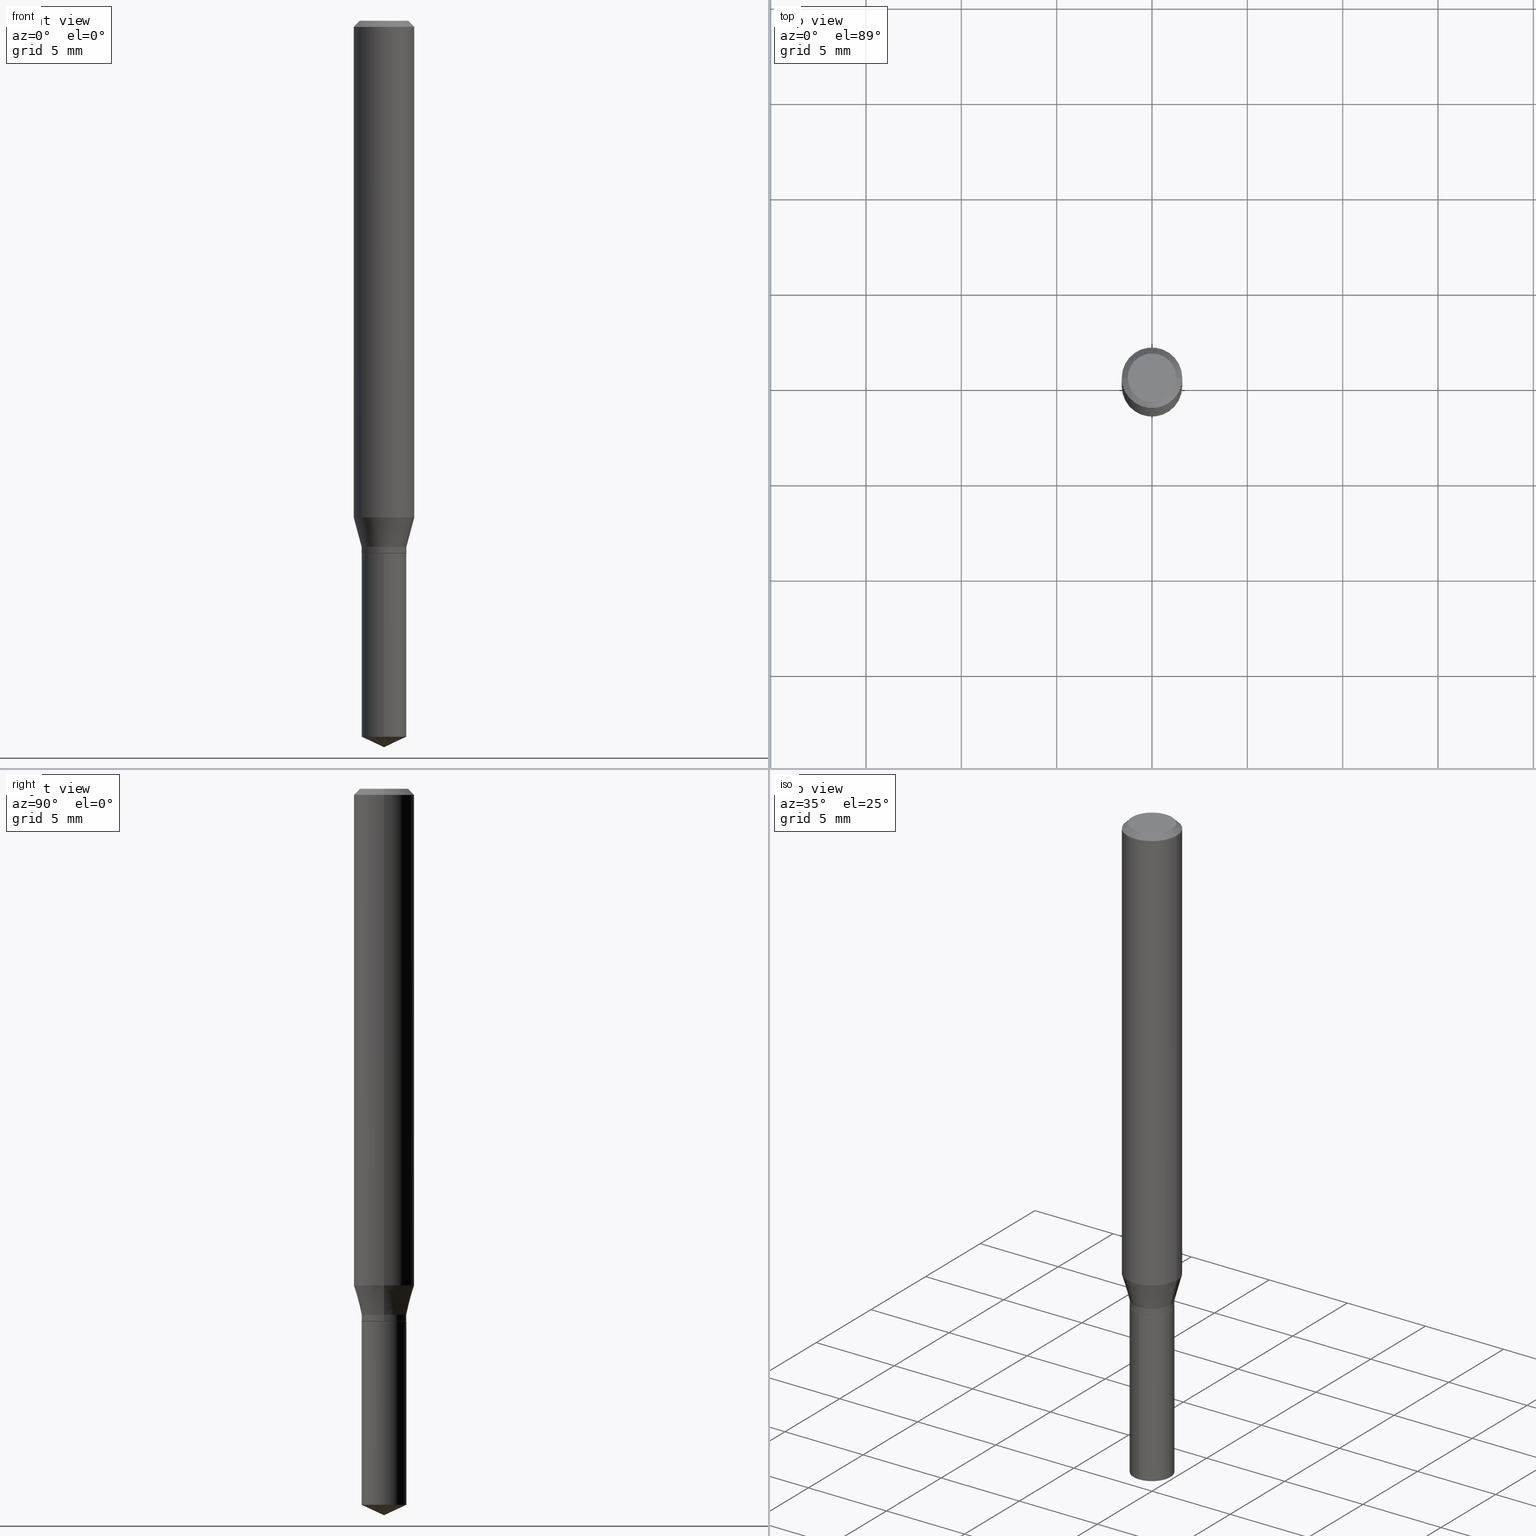
[diagram: canonical four-view strip — front | top / right | iso, engineering-drawing reading convention]
A machine part, canonical four-view strip (front | top / right | iso — engineering-drawing reading convention). The complete STEP part file that produces these views, byte-faithful:
ISO-10303-21;
HEADER;
FILE_DESCRIPTION (( 'STEP AP203' ),
    '1' );
FILE_NAME ('07368.STEP',
    '2024-04-23T20:47:41',
    ( '' ),
    ( '' ),
    'SwSTEP 2.0',
    'SolidWorks 2023',
    '' );
FILE_SCHEMA (( 'CONFIG_CONTROL_DESIGN' ));
ENDSEC;

DATA;
#1 = LINE ( 'NONE', #158, #121 ) ;
#2 = VECTOR ( 'NONE', #217, 39.37007874015748143 ) ;
#3 = LOCAL_TIME ( 16, 47, 41.00000000000000000, #281 ) ;
#4 = ORIENTED_EDGE ( 'NONE', *, *, #170, .T. ) ;
#5 = EDGE_CURVE ( 'NONE', #363, #257, #51, .T. ) ;
#6 = ORIENTED_EDGE ( 'NONE', *, *, #24, .F. ) ;
#7 = ORIENTED_EDGE ( 'NONE', *, *, #372, .T. ) ;
#8 = CARTESIAN_POINT ( 'NONE',  ( 0.04624999999999999944, -4.115059905960530718E-15, -1.086100000000000287 ) ) ;
#9 = DATE_AND_TIME ( #125, #3 ) ;
#10 = VECTOR ( 'NONE', #42, 39.37007874015748854 ) ;
#11 = DIRECTION ( 'NONE',  ( 1.000000000000000000, -6.982962677686264344E-15, 0.000000000000000000 ) ) ;
#12 = ADVANCED_FACE ( 'NONE', ( #380 ), #41, .T. ) ;
#13 = PLANE ( 'NONE',  #279 ) ;
#14 = PERSON_AND_ORGANIZATION ( #228, #101 ) ;
#15 = DIRECTION ( 'NONE',  ( 1.000000000000000000, -6.982962677686266711E-15, 4.876176775795935793E-29 ) ) ;
#16 = DIRECTION ( 'NONE',  ( -2.445468806185136597E-29, 3.491481338843145583E-15, 1.000000000000000000 ) ) ;
#17 = CALENDAR_DATE ( 2024, 23, 4 ) ;
#18 = DIRECTION ( 'NONE',  ( -2.445468806185136597E-29, 3.491481338843145583E-15, 1.000000000000000000 ) ) ;
#19 = CARTESIAN_POINT ( 'NONE',  ( 3.286260152890731533E-16, 0.04624999999999616224, -1.100000000000000089 ) ) ;
#20 = CARTESIAN_POINT ( 'NONE',  ( -0.04624999999999999944, 3.286260152890463320E-16, -2.275007479242894085E-30 ) ) ;
#21 = AXIS2_PLACEMENT_3D ( 'NONE', #402, #113, #256 ) ;
#22 = AXIS2_PLACEMENT_3D ( 'NONE', #173, #108, #322 ) ;
#23 = CARTESIAN_POINT ( 'NONE',  ( -9.260740279983036507E-28, 1.322265303911854087E-13, 37.87007874015748143 ) ) ;
#24 = EDGE_CURVE ( 'NONE', #84, #123, #415, .T. ) ;
#25 = LINE ( 'NONE', #20, #2 ) ;
#26 = EDGE_LOOP ( 'NONE', ( #310, #443, #348, #7 ) ) ;
#27 = CARTESIAN_POINT ( 'NONE',  ( 0.04624999999999999944, -3.229620238429898452E-16, 2.255231758805620374E-30 ) ) ;
#28 = EDGE_LOOP ( 'NONE', ( #333, #120, #218, #455 ) ) ;
#29 = DIRECTION ( 'NONE',  ( -0.7071067811865451302, 2.468850131082231817E-15, -0.7071067811865499042 ) ) ;
#30 = CARTESIAN_POINT ( 'NONE',  ( 0.04624999999999999944, -4.115059905960530718E-15, -1.086100000000000287 ) ) ;
#31 = ADVANCED_FACE ( 'NONE', ( #345 ), #163, .T. ) ;
#32 = CIRCLE ( 'NONE', #313, 0.04624999999999999944 ) ;
#33 =( CONVERSION_BASED_UNIT ( 'INCH', #405 ) LENGTH_UNIT ( ) NAMED_UNIT ( #483 ) );
#34 = CARTESIAN_POINT ( 'NONE',  ( 2.690015686803650369E-29, -3.840629472727460101E-15, -1.100000000000000089 ) ) ;
#35 = APPROVAL ( #275, 'UNSPECIFIED' ) ;
#36 = APPROVAL_DATE_TIME ( #368, #181 ) ;
#37 = CARTESIAN_POINT ( 'NONE',  ( 0.06250000000000000000, -4.724246415962603826E-16, -0.01250000000000008916 ) ) ;
#38 = AXIS2_PLACEMENT_3D ( 'NONE', #100, #214, #362 ) ;
#39 = AXIS2_PLACEMENT_3D ( 'NONE', #71, #75, #298 ) ;
#40 = ORIENTED_EDGE ( 'NONE', *, *, #164, .T. ) ;
#41 = CYLINDRICAL_SURFACE ( 'NONE', #468, 0.04624999999999999944 ) ;
#42 = DIRECTION ( 'NONE',  ( -0.2588190451025212391, 5.211531920934549464E-15, 0.9659258262890679791 ) ) ;
#43 = EDGE_CURVE ( 'NONE', #363, #457, #264, .T. ) ;
#44 = AXIS2_PLACEMENT_3D ( 'NONE', #194, #315, #128 ) ;
#45 = AXIS2_PLACEMENT_3D ( 'NONE', #346, #351, #57 ) ;
#46 = ORIENTED_EDGE ( 'NONE', *, *, #292, .T. ) ;
#47 = VERTEX_POINT ( 'NONE', #49 ) ;
#48 = CARTESIAN_POINT ( 'NONE',  ( 3.056836007731442729E-31, -4.364351673553962300E-17, -0.01250000000000008916 ) ) ;
#49 = CARTESIAN_POINT ( 'NONE',  ( -0.04999999999999999584, 3.709698922520826725E-16, -1.592040838894077649E-18 ) ) ;
#50 = DIRECTION ( 'NONE',  ( -2.445468806185136877E-29, 3.491481338843145188E-15, 1.000000000000000000 ) ) ;
#51 = CIRCLE ( 'NONE', #289, 0.04574999999999999900 ) ;
#52 = CARTESIAN_POINT ( 'NONE',  ( 3.893286209682126177E-47, -5.558580879666067980E-33, -1.592040838891559689E-18 ) ) ;
#53 = AXIS2_PLACEMENT_3D ( 'NONE', #283, #432, #130 ) ;
#54 = LINE ( 'NONE', #465, #184 ) ;
#55 = PERSON_AND_ORGANIZATION_ROLE ( 'classification_officer' ) ;
#56 = CARTESIAN_POINT ( 'NONE',  ( 2.690015686803650369E-29, -3.840629472727460101E-15, -1.100000000000000089 ) ) ;
#57 = DIRECTION ( 'NONE',  ( 1.000000000000000000, -6.982962677686266711E-15, 0.000000000000000000 ) ) ;
#58 = CARTESIAN_POINT ( 'NONE',  ( 2.688792952400557567E-29, -3.838883732058038598E-15, -1.099499999999999922 ) ) ;
#59 = EDGE_LOOP ( 'NONE', ( #328, #40, #197, #230 ) ) ;
#60 = EDGE_CURVE ( 'NONE', #123, #269, #1, .T. ) ;
#61 = APPLICATION_CONTEXT ( 'configuration controlled 3d designs of mechanical parts and assemblies' ) ;
#62 = CARTESIAN_POINT ( 'NONE',  ( 1.946643104841063088E-47, -2.779290439833033990E-33, -7.960204194457798443E-19 ) ) ;
#63 = FACE_OUTER_BOUND ( 'NONE', #378, .T. ) ;
#64 = CONICAL_SURFACE ( 'NONE', #446, 84.42940631927388040, 1.134464013796313786 ) ;
#65 = CONICAL_SURFACE ( 'NONE', #297, 84.42940631927388040, 1.134464013796313786 ) ;
#66 = ORIENTED_EDGE ( 'NONE', *, *, #300, .F. ) ;
#67 = LINE ( 'NONE', #388, #183 ) ;
#68 = EDGE_LOOP ( 'NONE', ( #480, #246, #308 ) ) ;
#69 = ADVANCED_FACE ( 'NONE', ( #320 ), #427, .T. ) ;
#70 = EDGE_LOOP ( 'NONE', ( #182, #419, #395, #254 ) ) ;
#71 = CARTESIAN_POINT ( 'NONE',  ( 2.690015686803650369E-29, -3.840629472727460101E-15, -1.100000000000000089 ) ) ;
#72 = LINE ( 'NONE', #30, #81 ) ;
#73 = AXIS2_PLACEMENT_3D ( 'NONE', #172, #174, #436 ) ;
#74 = CC_DESIGN_SECURITY_CLASSIFICATION ( #396, ( #222 ) ) ;
#75 = DIRECTION ( 'NONE',  ( -2.445399690415121530E-29, 3.491580316559632610E-15, 1.000000000000000000 ) ) ;
#76 = PERSON_AND_ORGANIZATION ( #228, #101 ) ;
#77 = LINE ( 'NONE', #336, #110 ) ;
#78 = EDGE_CURVE ( 'NONE', #147, #47, #146, .T. ) ;
#79 = DIRECTION ( 'NONE',  ( 0.7071067811865451302, -7.319954787623248157E-15, -0.7071067811865499042 ) ) ;
#80 = ORIENTED_EDGE ( 'NONE', *, *, #349, .F. ) ;
#81 = VECTOR ( 'NONE', #221, 39.37007874015748854 ) ;
#82 = LOCAL_TIME ( 16, 47, 41.00000000000000000, #379 ) ;
#83 = EDGE_LOOP ( 'NONE', ( #116, #107, #339, #124 ) ) ;
#84 = VERTEX_POINT ( 'NONE', #245 ) ;
#85 = EDGE_CURVE ( 'NONE', #340, #126, #343, .T. ) ;
#86 = ORIENTED_EDGE ( 'NONE', *, *, #60, .T. ) ;
#87 = AXIS2_PLACEMENT_3D ( 'NONE', #433, #394, #132 ) ;
#88 = CIRCLE ( 'NONE', #87, 0.04999999999999999584 ) ;
#89 = APPLICATION_CONTEXT ( 'configuration controlled 3d designs of mechanical parts and assemblies' ) ;
#90 = APPROVAL_PERSON_ORGANIZATION ( #364, #190, #476 ) ;
#91 = ORIENTED_EDGE ( 'NONE', *, *, #112, .F. ) ;
#92 = PERSON_AND_ORGANIZATION_ROLE ( 'design_supplier' ) ;
#93 = ORIENTED_EDGE ( 'NONE', *, *, #198, .T. ) ;
#94 = CC_DESIGN_DATE_AND_TIME_ASSIGNMENT ( #486, #449, ( #263 ) ) ;
#95 = DIRECTION ( 'NONE',  ( -2.445399690415121810E-29, 3.491580316559632610E-15, 1.000000000000000000 ) ) ;
#96 = SECURITY_CLASSIFICATION_LEVEL ( 'unclassified' ) ;
#97 = DIRECTION ( 'NONE',  ( -2.445468806185136597E-29, 3.491481338843145583E-15, 1.000000000000000000 ) ) ;
#98 = DIRECTION ( 'NONE',  ( -2.445399690415121530E-29, 3.491580316559632610E-15, 1.000000000000000000 ) ) ;
#99 = AXIS2_PLACEMENT_3D ( 'NONE', #327, #134, #109 ) ;
#100 = CARTESIAN_POINT ( 'NONE',  ( 3.056836007731442729E-31, -4.364351673553962300E-17, -0.01250000000000008916 ) ) ;
#101 = ORGANIZATION ( 'UNSPECIFIED', 'UNSPECIFIED', '' ) ;
#102 = DIRECTION ( 'NONE',  ( 1.000000000000000000, -6.982962677686265133E-15, 0.000000000000000000 ) ) ;
#103 = CARTESIAN_POINT ( 'NONE',  ( 2.690015686803650369E-29, -3.840629472727460101E-15, -1.100000000000000089 ) ) ;
#104 = EDGE_CURVE ( 'NONE', #403, #84, #452, .T. ) ;
#105 = CARTESIAN_POINT ( 'NONE',  ( 0.06250000000000012490, -4.016789281031512616E-15, -1.025454174377005589 ) ) ;
#106 = FACE_OUTER_BOUND ( 'NONE', #68, .T. ) ;
#107 = ORIENTED_EDGE ( 'NONE', *, *, #412, .T. ) ;
#108 = DIRECTION ( 'NONE',  ( -2.445468806185136597E-29, 3.491481338843145583E-15, 1.000000000000000000 ) ) ;
#109 = DIRECTION ( 'NONE',  ( 1.000000000000000000, -6.982962677686265133E-15, 0.000000000000000000 ) ) ;
#110 = VECTOR ( 'NONE', #371, 39.37007874015748143 ) ;
#111 = ORIENTED_EDGE ( 'NONE', *, *, #300, .T. ) ;
#112 = EDGE_CURVE ( 'NONE', #439, #193, #67, .T. ) ;
#113 = DIRECTION ( 'NONE',  ( 2.445399690415121250E-29, -3.491580316559632610E-15, -1.000000000000000000 ) ) ;
#114 = ORIENTED_EDGE ( 'NONE', *, *, #356, .F. ) ;
#115 = MECHANICAL_CONTEXT ( 'NONE', #89, 'mechanical' ) ;
#116 = ORIENTED_EDGE ( 'NONE', *, *, #440, .T. ) ;
#117 = CONICAL_SURFACE ( 'NONE', #38, 0.06250000000000000000, 0.7853981633974449483 ) ;
#118 = APPROVAL_STATUS ( 'not_yet_approved' ) ;
#119 = CARTESIAN_POINT ( 'NONE',  ( 3.056836007731442729E-31, -4.364351673553962300E-17, -0.01250000000000008916 ) ) ;
#120 = ORIENTED_EDGE ( 'NONE', *, *, #458, .T. ) ;
#121 = VECTOR ( 'NONE', #304, 39.37007874015748143 ) ;
#122 = EDGE_CURVE ( 'NONE', #123, #454, #240, .T. ) ;
#123 = VERTEX_POINT ( 'NONE', #207 ) ;
#124 = ORIENTED_EDGE ( 'NONE', *, *, #307, .F. ) ;
#125 = CALENDAR_DATE ( 2024, 23, 4 ) ;
#126 = VERTEX_POINT ( 'NONE', #169 ) ;
#127 = AXIS2_PLACEMENT_3D ( 'NONE', #34, #223, #477 ) ;
#128 = DIRECTION ( 'NONE',  ( -6.982962677686265922E-15, -1.000000000000000000, 2.953349182339743999E-15 ) ) ;
#129 = CC_DESIGN_PERSON_AND_ORGANIZATION_ASSIGNMENT ( #485, #445, ( #481 ) ) ;
#130 = DIRECTION ( 'NONE',  ( -6.982962677686265922E-15, -1.000000000000000000, 5.906698364679487997E-15 ) ) ;
#131 = PERSON_AND_ORGANIZATION ( #228, #101 ) ;
#132 = DIRECTION ( 'NONE',  ( 1.000000000000000000, -6.982962677686265922E-15, 4.875957971899673662E-29 ) ) ;
#133 = FACE_OUTER_BOUND ( 'NONE', #220, .T. ) ;
#134 = DIRECTION ( 'NONE',  ( -2.445468806185136597E-29, 3.491481338843145583E-15, 1.000000000000000000 ) ) ;
#135 = CYLINDRICAL_SURFACE ( 'NONE', #241, 0.06250000000000006939 ) ;
#136 = ADVANCED_FACE ( 'NONE', ( #431 ), #305, .T. ) ;
#137 = VECTOR ( 'NONE', #282, 39.37007874015748143 ) ;
#138 = CARTESIAN_POINT ( 'NONE',  ( 2.656023670397677438E-29, -3.792097882117540725E-15, -1.086100000000000287 ) ) ;
#139 = CARTESIAN_POINT ( 'NONE',  ( 3.668099535622682715E-29, -5.237370474839449507E-15, -1.500000000000000222 ) ) ;
#140 = DIRECTION ( 'NONE',  ( -6.328713451373368590E-15, -0.9063077870366483824, 0.4226182617407029940 ) ) ;
#141 = ORIENTED_EDGE ( 'NONE', *, *, #43, .T. ) ;
#142 = DIRECTION ( 'NONE',  ( 6.439704144417024042E-15, 0.9063077870366512689, 0.4226182617406966657 ) ) ;
#143 = DIRECTION ( 'NONE',  ( 1.000000000000000000, -6.982962677686264344E-15, 0.000000000000000000 ) ) ;
#144 = EDGE_LOOP ( 'NONE', ( #91, #288, #344 ) ) ;
#145 = COORDINATED_UNIVERSAL_TIME_OFFSET ( 5, 0, .BEHIND. ) ;
#146 = CIRCLE ( 'NONE', #321, 0.04999999999999999584 ) ;
#147 = VERTEX_POINT ( 'NONE', #355 ) ;
#148 = ADVANCED_FACE ( 'NONE', ( #278 ), #251, .T. ) ;
#149 = APPLICATION_PROTOCOL_DEFINITION ( 'international standard', 'config_control_design', 1994, #61 ) ;
#150 = CARTESIAN_POINT ( 'NONE',  ( -0.04574999999999999900, -3.512906943943103368E-15, -1.100000000000000089 ) ) ;
#151 = VECTOR ( 'NONE', #79, 39.37007874015748143 ) ;
#152 = AXIS2_PLACEMENT_3D ( 'NONE', #119, #417, #244 ) ;
#153 = CC_DESIGN_APPROVAL ( #35, ( #396 ) ) ;
#154 = CALENDAR_DATE ( 2024, 23, 4 ) ;
#155 = CC_DESIGN_DATE_AND_TIME_ASSIGNMENT ( #466, #309, ( #396 ) ) ;
#156 = ORIENTED_EDGE ( 'NONE', *, *, #425, .F. ) ;
#157 = EDGE_CURVE ( 'NONE', #257, #363, #369, .T. ) ;
#158 = CARTESIAN_POINT ( 'NONE',  ( -0.06250000000000006939, 4.440892098500631092E-16, -3.074334431409319267E-30 ) ) ;
#159 = AXIS2_PLACEMENT_3D ( 'NONE', #248, #18, #143 ) ;
#160 = CONICAL_SURFACE ( 'NONE', #152, 0.06250000000000000000, 0.7853981633974449483 ) ;
#161 = ORIENTED_EDGE ( 'NONE', *, *, #43, .F. ) ;
#162 = ORIENTED_EDGE ( 'NONE', *, *, #104, .T. ) ;
#163 = CYLINDRICAL_SURFACE ( 'NONE', #44, 0.04624999999999999944 ) ;
#164 = EDGE_CURVE ( 'NONE', #175, #84, #25, .T. ) ;
#165 = AXIS2_PLACEMENT_3D ( 'NONE', #186, #410, #294 ) ;
#166 = LINE ( 'NONE', #274, #469 ) ;
#167 = ORIENTED_EDGE ( 'NONE', *, *, #78, .F. ) ;
#168 = DIRECTION ( 'NONE',  ( -1.000000000000000000, 6.982962677686265922E-15, -4.876176775795935793E-29 ) ) ;
#169 = CARTESIAN_POINT ( 'NONE',  ( -3.229620238429629253E-16, -0.04625000000000384359, -1.099999999999999867 ) ) ;
#170 = EDGE_CURVE ( 'NONE', #454, #123, #350, .T. ) ;
#171 = CARTESIAN_POINT ( 'NONE',  ( 3.286260152890825210E-16, 0.04624999999999616224, -1.100000000000000089 ) ) ;
#172 = CARTESIAN_POINT ( 'NONE',  ( 2.507716195611300644E-29, -3.580354113676120158E-15, -1.025454174377005589 ) ) ;
#173 = CARTESIAN_POINT ( 'NONE',  ( 2.688792952400557567E-29, -3.838883732058038598E-15, -1.099499999999999922 ) ) ;
#174 = DIRECTION ( 'NONE',  ( -2.445468806185136597E-29, 3.491481338843145583E-15, 1.000000000000000000 ) ) ;
#175 = VERTEX_POINT ( 'NONE', #284 ) ;
#176 = DIRECTION ( 'NONE',  ( -2.445399690415121530E-29, 3.491580316559632610E-15, 1.000000000000000000 ) ) ;
#177 = CARTESIAN_POINT ( 'NONE',  ( 2.507716195611300644E-29, -3.580354113676120158E-15, -1.025454174377005589 ) ) ;
#178 = ORIENTED_EDGE ( 'NONE', *, *, #5, .T. ) ;
#179 =( NAMED_UNIT ( * ) PLANE_ANGLE_UNIT ( ) SI_UNIT ( $, .RADIAN. ) );
#180 = LINE ( 'NONE', #27, #137 ) ;
#181 = APPROVAL ( #441, 'UNSPECIFIED' ) ;
#182 = ORIENTED_EDGE ( 'NONE', *, *, #60, .F. ) ;
#183 = VECTOR ( 'NONE', #140, 39.37007874015748143 ) ;
#184 = VECTOR ( 'NONE', #50, 39.37007874015748143 ) ;
#185 = EDGE_LOOP ( 'NONE', ( #6, #475, #111, #359 ) ) ;
#186 = CARTESIAN_POINT ( 'NONE',  ( 0.000000000000000000, 0.000000000000000000, 0.000000000000000000 ) ) ;
#187 = ADVANCED_FACE ( 'NONE', ( #106 ), #64, .T. ) ;
#188 = CARTESIAN_POINT ( 'NONE',  ( -0.06250000000000000000, -1.367909605355765863E-15, -0.01250000000000008916 ) ) ;
#189 = PERSON_AND_ORGANIZATION ( #228, #101 ) ;
#190 = APPROVAL ( #118, 'UNSPECIFIED' ) ;
#191 = AXIS2_PLACEMENT_3D ( 'NONE', #391, #473, #210 ) ;
#192 = CC_DESIGN_APPROVAL ( #181, ( #263 ) ) ;
#193 = VERTEX_POINT ( 'NONE', #253 ) ;
#194 = CARTESIAN_POINT ( 'NONE',  ( 2.690015686803650369E-29, -3.840629472727460101E-15, -1.100000000000000089 ) ) ;
#195 = ORIENTED_EDGE ( 'NONE', *, *, #157, .T. ) ;
#196 = AXIS2_PLACEMENT_3D ( 'NONE', #58, #358, #324 ) ;
#197 = ORIENTED_EDGE ( 'NONE', *, *, #104, .F. ) ;
#198 = EDGE_CURVE ( 'NONE', #457, #403, #180, .T. ) ;
#199 = DIRECTION ( 'NONE',  ( 1.000000000000000000, -6.982962677686266711E-15, 4.876176775795935793E-29 ) ) ;
#200 = DIRECTION ( 'NONE',  ( -2.445468806185136597E-29, 3.491481338843145583E-15, 1.000000000000000000 ) ) ;
#201 = PERSON_AND_ORGANIZATION ( #228, #101 ) ;
#202 = CARTESIAN_POINT ( 'NONE',  ( 2.690015686803650369E-29, -3.840629472727460101E-15, -1.100000000000000089 ) ) ;
#203 = AXIS2_PLACEMENT_3D ( 'NONE', #48, #200, #314 ) ;
#204 = DIRECTION ( 'NONE',  ( -0.7071067811865232589, 7.493145998870265808E-15, 0.7071067811865715536 ) ) ;
#205 = CARTESIAN_POINT ( 'NONE',  ( -9.260740279983036507E-28, 1.322265303911854087E-13, 37.87007874015748143 ) ) ;
#206 = CARTESIAN_POINT ( 'NONE',  ( 0.000000000000000000, 0.000000000000000000, 0.000000000000000000 ) ) ;
#207 = CARTESIAN_POINT ( 'NONE',  ( -0.06250000000000012490, -3.136264903826056358E-15, -1.025454174377005589 ) ) ;
#208 = CC_DESIGN_PERSON_AND_ORGANIZATION_ASSIGNMENT ( #347, #55, ( #396 ) ) ;
#209 = DIRECTION ( 'NONE',  ( -2.445468806185136597E-29, 3.491481338843145583E-15, 1.000000000000000000 ) ) ;
#210 = DIRECTION ( 'NONE',  ( 1.000000000000000000, -6.982962677686264344E-15, 0.000000000000000000 ) ) ;
#211 = EDGE_LOOP ( 'NONE', ( #178, #414, #156, #161 ) ) ;
#212 = CARTESIAN_POINT ( 'NONE',  ( 3.615436290086016427E-29, -5.161959632220094435E-15, -1.478433270810331379 ) ) ;
#213 = CIRCLE ( 'NONE', #203, 0.06250000000000000000 ) ;
#214 = DIRECTION ( 'NONE',  ( 2.445468806185136597E-29, -3.491481338843145583E-15, -1.000000000000000000 ) ) ;
#215 = ORIENTED_EDGE ( 'NONE', *, *, #474, .F. ) ;
#216 = EDGE_CURVE ( 'NONE', #175, #457, #406, .T. ) ;
#217 = DIRECTION ( 'NONE',  ( -2.445468806185136877E-29, 3.491481338843145188E-15, 1.000000000000000000 ) ) ;
#218 = ORIENTED_EDGE ( 'NONE', *, *, #307, .T. ) ;
#219 =( LENGTH_UNIT ( ) NAMED_UNIT ( * ) SI_UNIT ( $, .METRE. ) );
#220 = EDGE_LOOP ( 'NONE', ( #4, #86, #215, #80 ) ) ;
#221 = DIRECTION ( 'NONE',  ( 0.2588190451025212391, 1.565188264969622362E-15, 0.9659258262890679791 ) ) ;
#222 = PRODUCT_DEFINITION_FORMATION_WITH_SPECIFIED_SOURCE ( 'ANY', '', #481, .NOT_KNOWN. ) ;
#223 = DIRECTION ( 'NONE',  ( -2.445399690415121530E-29, 3.491580316559632610E-15, 1.000000000000000000 ) ) ;
#224 = ORIENTED_EDGE ( 'NONE', *, *, #237, .T. ) ;
#225 = AXIS2_PLACEMENT_3D ( 'NONE', #177, #385, #287 ) ;
#226 = ADVANCED_FACE ( 'NONE', ( #63 ), #461, .T. ) ;
#227 = CARTESIAN_POINT ( 'NONE',  ( 0.000000000000000000, 0.000000000000000000, 0.000000000000000000 ) ) ;
#228 = PERSON ( 'UNSPECIFIED', 'UNSPECIFIED', 'UNSPECIFIED', ('UNSPECIFIED'), ('UNSPECIFIED'), ('UNSPECIFIED') ) ;
#229 = DIRECTION ( 'NONE',  ( -2.445468806185136597E-29, 3.491481338843145583E-15, 1.000000000000000000 ) ) ;
#230 = ORIENTED_EDGE ( 'NONE', *, *, #198, .F. ) ;
#231 = AXIS2_PLACEMENT_3D ( 'NONE', #138, #398, #464 ) ;
#232 = CIRCLE ( 'NONE', #22, 0.04624999999999999944 ) ;
#233 = PERSON_AND_ORGANIZATION_ROLE ( 'creator' ) ;
#234 = ORIENTED_EDGE ( 'NONE', *, *, #316, .T. ) ;
#235 = ORIENTED_EDGE ( 'NONE', *, *, #337, .F. ) ;
#236 = CARTESIAN_POINT ( 'NONE',  ( 2.656023670397677438E-29, -3.792097882117540725E-15, -1.086100000000000287 ) ) ;
#237 = EDGE_CURVE ( 'NONE', #47, #147, #88, .T. ) ;
#238 = APPROVAL_DATE_TIME ( #9, #35 ) ;
#239 = DIRECTION ( 'NONE',  ( -2.445468806185136597E-29, 3.491481338843145583E-15, 1.000000000000000000 ) ) ;
#240 = CIRCLE ( 'NONE', #225, 0.06250000000000012490 ) ;
#241 = AXIS2_PLACEMENT_3D ( 'NONE', #280, #357, #429 ) ;
#242 = CARTESIAN_POINT ( 'NONE',  ( 0.04574999999999999900, -4.160100015231607087E-15, -1.100000000000000089 ) ) ;
#243 = DIRECTION ( 'NONE',  ( -2.445399690415121530E-29, 3.491580316559632610E-15, 1.000000000000000000 ) ) ;
#244 = DIRECTION ( 'NONE',  ( -1.000000000000000000, 6.982962677686266711E-15, 0.000000000000000000 ) ) ;
#245 = CARTESIAN_POINT ( 'NONE',  ( -0.04624999999999999944, -3.486864791798743231E-15, -1.086100000000000287 ) ) ;
#246 = ORIENTED_EDGE ( 'NONE', *, *, #112, .T. ) ;
#247 = CARTESIAN_POINT ( 'NONE',  ( 0.04624999999999999944, -4.161845755901027802E-15, -1.099499999999999922 ) ) ;
#248 = CARTESIAN_POINT ( 'NONE',  ( 2.690015686803650369E-29, -3.840629472727460101E-15, -1.100000000000000089 ) ) ;
#249 = ADVANCED_FACE ( 'NONE', ( #318 ), #117, .T. ) ;
#250 = LINE ( 'NONE', #286, #306 ) ;
#251 = CONICAL_SURFACE ( 'NONE', #159, 0.04574999999999999900, 0.7853981633974141952 ) ;
#252 = CONICAL_SURFACE ( 'NONE', #407, 0.04624999999999999944, 0.2617993877991499629 ) ;
#253 = CARTESIAN_POINT ( 'NONE',  ( -3.229620238429537055E-16, -0.04625000000000517586, -1.478433270810331157 ) ) ;
#254 = ORIENTED_EDGE ( 'NONE', *, *, #372, .F. ) ;
#255 = APPROVAL_ROLE ( '' ) ;
#256 = DIRECTION ( 'NONE',  ( 6.982962677686265922E-15, 1.000000000000000000, -3.491580316559632610E-15 ) ) ;
#257 = VERTEX_POINT ( 'NONE', #150 ) ;
#258 = CALENDAR_DATE ( 2024, 23, 4 ) ;
#259 = FACE_OUTER_BOUND ( 'NONE', #329, .T. ) ;
#260 = ADVANCED_FACE ( 'NONE', ( #408 ), #295, .F. ) ;
#261 =( GEOMETRIC_REPRESENTATION_CONTEXT ( 3 ) GLOBAL_UNCERTAINTY_ASSIGNED_CONTEXT ( ( #301 ) ) GLOBAL_UNIT_ASSIGNED_CONTEXT ( ( #33, #179, #479 ) ) REPRESENTATION_CONTEXT ( 'NONE', 'WORKASPACE' ) );
#262 = CARTESIAN_POINT ( 'NONE',  ( 2.690015686803650369E-29, -3.840629472727460101E-15, -1.100000000000000089 ) ) ;
#263 = PRODUCT_DEFINITION ( 'UNKNOWN', '', #222, #484 ) ;
#264 = LINE ( 'NONE', #273, #271 ) ;
#265 = CLOSED_SHELL ( 'NONE', ( #69, #323, #409, #136, #12, #226, #389, #381, #249, #376, #285, #148 ) ) ;
#266 = APPROVAL_PERSON_ORGANIZATION ( #14, #35, #456 ) ;
#267 = DIRECTION ( 'NONE',  ( -2.445468806185136597E-29, 3.491481338843145583E-15, 1.000000000000000000 ) ) ;
#268 = ORIENTED_EDGE ( 'NONE', *, *, #78, .T. ) ;
#269 = VERTEX_POINT ( 'NONE', #188 ) ;
#270 = CC_DESIGN_PERSON_AND_ORGANIZATION_ASSIGNMENT ( #131, #92, ( #222 ) ) ;
#271 = VECTOR ( 'NONE', #382, 39.37007874015748854 ) ;
#272 = CIRCLE ( 'NONE', #45, 0.06250000000000000000 ) ;
#273 = CARTESIAN_POINT ( 'NONE',  ( 0.04574999999999999900, -4.160100015231607087E-15, -1.100000000000000089 ) ) ;
#274 = CARTESIAN_POINT ( 'NONE',  ( -0.06250000000000000000, 3.927916506198520587E-16, -0.01250000000000008916 ) ) ;
#275 = APPROVAL_STATUS ( 'not_yet_approved' ) ;
#276 = DIRECTION ( 'NONE',  ( 1.000000000000000000, -6.982962677686265922E-15, 4.875957971899673662E-29 ) ) ;
#277 = DIRECTION ( 'NONE',  ( -6.982962677686267499E-15, -1.000000000000000000, 3.520397390770472803E-15 ) ) ;
#278 = FACE_OUTER_BOUND ( 'NONE', #291, .T. ) ;
#279 = AXIS2_PLACEMENT_3D ( 'NONE', #62, #319, #168 ) ;
#280 = CARTESIAN_POINT ( 'NONE',  ( 0.000000000000000000, 0.000000000000000000, 0.000000000000000000 ) ) ;
#281 = COORDINATED_UNIVERSAL_TIME_OFFSET ( 5, 0, .BEHIND. ) ;
#282 = DIRECTION ( 'NONE',  ( -2.445468806185136877E-29, 3.491481338843145188E-15, 1.000000000000000000 ) ) ;
#283 = CARTESIAN_POINT ( 'NONE',  ( 3.615436290086016427E-29, -5.161959632220094435E-15, -1.478433270810331379 ) ) ;
#284 = CARTESIAN_POINT ( 'NONE',  ( -0.04624999999999999944, -3.486864791798743231E-15, -1.099499999999999922 ) ) ;
#285 = ADVANCED_FACE ( 'NONE', ( #259 ), #299, .F. ) ;
#286 = CARTESIAN_POINT ( 'NONE',  ( 3.668252923656895710E-29, -5.237152723863177100E-15, -1.500000000000000222 ) ) ;
#287 = DIRECTION ( 'NONE',  ( 1.000000000000000000, -6.982962677686264344E-15, 0.000000000000000000 ) ) ;
#288 = ORIENTED_EDGE ( 'NONE', *, *, #462, .T. ) ;
#289 = AXIS2_PLACEMENT_3D ( 'NONE', #202, #229, #11 ) ;
#290 = LOCAL_TIME ( 16, 47, 41.00000000000000000, #145 ) ;
#291 = EDGE_LOOP ( 'NONE', ( #114, #195, #141, #416 ) ) ;
#292 = EDGE_CURVE ( 'NONE', #147, #303, #447, .T. ) ;
#293 = FACE_OUTER_BOUND ( 'NONE', #28, .T. ) ;
#294 = DIRECTION ( 'NONE',  ( 1.000000000000000000, 0.000000000000000000, 0.000000000000000000 ) ) ;
#295 = PLANE ( 'NONE',  #21 ) ;
#296 = DIRECTION ( 'NONE',  ( 1.000000000000000000, -6.982962677686265922E-15, 4.876176775795935793E-29 ) ) ;
#297 = AXIS2_PLACEMENT_3D ( 'NONE', #23, #98, #277 ) ;
#298 = DIRECTION ( 'NONE',  ( -6.982962677686265922E-15, -1.000000000000000000, 2.953349182339743999E-15 ) ) ;
#299 = PLANE ( 'NONE',  #312 ) ;
#300 = EDGE_CURVE ( 'NONE', #403, #454, #72, .T. ) ;
#301 = UNCERTAINTY_MEASURE_WITH_UNIT (LENGTH_MEASURE( 1.000000000000000082E-05 ), #33, 'distance_accuracy_value', 'NONE');
#302 = ADVANCED_BREP_SHAPE_REPRESENTATION ( '07368', ( #450, #444, #165 ), #261 ) ;
#303 = VERTEX_POINT ( 'NONE', #411 ) ;
#304 = DIRECTION ( 'NONE',  ( -2.445468806185136877E-29, 3.491481338843145188E-15, 1.000000000000000000 ) ) ;
#305 = CONICAL_SURFACE ( 'NONE', #99, 0.04624999999999999944, 0.2617993877991499629 ) ;
#306 = VECTOR ( 'NONE', #142, 39.37007874015748143 ) ;
#307 = EDGE_CURVE ( 'NONE', #193, #126, #77, .T. ) ;
#308 = ORIENTED_EDGE ( 'NONE', *, *, #458, .F. ) ;
#309 = DATE_TIME_ROLE ( 'classification_date' ) ;
#310 = ORIENTED_EDGE ( 'NONE', *, *, #292, .F. ) ;
#311 = ORIENTED_EDGE ( 'NONE', *, *, #170, .F. ) ;
#312 = AXIS2_PLACEMENT_3D ( 'NONE', #262, #404, #296 ) ;
#313 = AXIS2_PLACEMENT_3D ( 'NONE', #212, #176, #326 ) ;
#314 = DIRECTION ( 'NONE',  ( 1.000000000000000000, -6.982962677686266711E-15, 0.000000000000000000 ) ) ;
#315 = DIRECTION ( 'NONE',  ( -2.445399690415121530E-29, 3.491580316559632610E-15, 1.000000000000000000 ) ) ;
#316 = EDGE_CURVE ( 'NONE', #126, #340, #418, .T. ) ;
#317 = FACE_OUTER_BOUND ( 'NONE', #185, .T. ) ;
#318 = FACE_OUTER_BOUND ( 'NONE', #26, .T. ) ;
#319 = DIRECTION ( 'NONE',  ( 2.438088387897960049E-29, -3.491481338843145188E-15, -1.000000000000000000 ) ) ;
#320 = FACE_OUTER_BOUND ( 'NONE', #211, .T. ) ;
#321 = AXIS2_PLACEMENT_3D ( 'NONE', #52, #239, #276 ) ;
#322 = DIRECTION ( 'NONE',  ( 1.000000000000000000, -6.982962677686265133E-15, 0.000000000000000000 ) ) ;
#323 = ADVANCED_FACE ( 'NONE', ( #488 ), #160, .T. ) ;
#324 = DIRECTION ( 'NONE',  ( 1.000000000000000000, -6.982962677686265133E-15, 0.000000000000000000 ) ) ;
#325 = EDGE_LOOP ( 'NONE', ( #167, #46, #442, #420 ) ) ;
#326 = DIRECTION ( 'NONE',  ( -6.982962677686265922E-15, -1.000000000000000000, 5.906698364679487997E-15 ) ) ;
#327 = CARTESIAN_POINT ( 'NONE',  ( 2.656023670397677438E-29, -3.792097882117540725E-15, -1.086100000000000287 ) ) ;
#328 = ORIENTED_EDGE ( 'NONE', *, *, #425, .T. ) ;
#329 = EDGE_LOOP ( 'NONE', ( #489, #478 ) ) ;
#330 = CYLINDRICAL_SURFACE ( 'NONE', #39, 0.04624999999999999944 ) ;
#331 = CLOSED_SHELL ( 'NONE', ( #31, #401, #187, #490, #260 ) ) ;
#332 = CC_DESIGN_APPROVAL ( #190, ( #222 ) ) ;
#333 = ORIENTED_EDGE ( 'NONE', *, *, #412, .F. ) ;
#334 = PERSON_AND_ORGANIZATION_ROLE ( 'creator' ) ;
#335 = AXIS2_PLACEMENT_3D ( 'NONE', #352, #471, #15 ) ;
#336 = CARTESIAN_POINT ( 'NONE',  ( -3.229620238429629253E-16, -0.04625000000000384359, -1.099999999999999867 ) ) ;
#337 = EDGE_CURVE ( 'NONE', #84, #403, #374, .T. ) ;
#338 = VECTOR ( 'NONE', #204, 39.37007874015748854 ) ;
#339 = ORIENTED_EDGE ( 'NONE', *, *, #316, .F. ) ;
#340 = VERTEX_POINT ( 'NONE', #171 ) ;
#341 = CC_DESIGN_PERSON_AND_ORGANIZATION_ASSIGNMENT ( #189, #334, ( #263 ) ) ;
#342 = EDGE_LOOP ( 'NONE', ( #162, #366, #311, #66 ) ) ;
#343 = CIRCLE ( 'NONE', #413, 0.04624999999999999944 ) ;
#344 = ORIENTED_EDGE ( 'NONE', *, *, #440, .F. ) ;
#345 = FACE_OUTER_BOUND ( 'NONE', #83, .T. ) ;
#346 = CARTESIAN_POINT ( 'NONE',  ( 3.056836007731442729E-31, -4.364351673553962300E-17, -0.01250000000000008916 ) ) ;
#347 = PERSON_AND_ORGANIZATION ( #228, #101 ) ;
#348 = ORIENTED_EDGE ( 'NONE', *, *, #482, .T. ) ;
#349 = EDGE_CURVE ( 'NONE', #454, #303, #54, .T. ) ;
#350 = CIRCLE ( 'NONE', #73, 0.06250000000000012490 ) ;
#351 = DIRECTION ( 'NONE',  ( -2.445468806185136597E-29, 3.491481338843145583E-15, 1.000000000000000000 ) ) ;
#352 = CARTESIAN_POINT ( 'NONE',  ( 0.000000000000000000, 0.000000000000000000, 0.000000000000000000 ) ) ;
#353 = CARTESIAN_POINT ( 'NONE',  ( -0.04574999999999999900, -3.515556171117214569E-15, -1.100000000000000089 ) ) ;
#354 = CALENDAR_DATE ( 2024, 23, 4 ) ;
#355 = CARTESIAN_POINT ( 'NONE',  ( 0.04999999999999999584, -4.077247707424184705E-16, -1.592040838888913461E-18 ) ) ;
#356 = EDGE_CURVE ( 'NONE', #257, #175, #383, .T. ) ;
#357 = DIRECTION ( 'NONE',  ( -2.445468806185136597E-29, 3.491481338843145583E-15, 1.000000000000000000 ) ) ;
#358 = DIRECTION ( 'NONE',  ( -2.445468806185136597E-29, 3.491481338843145583E-15, 1.000000000000000000 ) ) ;
#359 = ORIENTED_EDGE ( 'NONE', *, *, #122, .F. ) ;
#360 = LOCAL_TIME ( 16, 47, 41.00000000000000000, #373 ) ;
#361 = CARTESIAN_POINT ( 'NONE',  ( 2.656023670397677438E-29, -3.792097882117540725E-15, -1.086100000000000287 ) ) ;
#362 = DIRECTION ( 'NONE',  ( -1.000000000000000000, 6.982962677686266711E-15, 0.000000000000000000 ) ) ;
#363 = VERTEX_POINT ( 'NONE', #242 ) ;
#364 = PERSON_AND_ORGANIZATION ( #228, #101 ) ;
#365 = DIRECTION ( 'NONE',  ( 1.000000000000000000, -6.982962677686264344E-15, 0.000000000000000000 ) ) ;
#366 = ORIENTED_EDGE ( 'NONE', *, *, #24, .T. ) ;
#367 = CC_DESIGN_PERSON_AND_ORGANIZATION_ASSIGNMENT ( #201, #233, ( #222 ) ) ;
#368 = DATE_AND_TIME ( #154, #360 ) ;
#369 = CIRCLE ( 'NONE', #191, 0.04574999999999999900 ) ;
#370 = APPROVAL_PERSON_ORGANIZATION ( #76, #181, #255 ) ;
#371 = DIRECTION ( 'NONE',  ( -2.445399690415121810E-29, 3.491580316559632610E-15, 1.000000000000000000 ) ) ;
#372 = EDGE_CURVE ( 'NONE', #269, #303, #272, .T. ) ;
#373 = COORDINATED_UNIVERSAL_TIME_OFFSET ( 5, 0, .BEHIND. ) ;
#374 = CIRCLE ( 'NONE', #428, 0.04624999999999999944 ) ;
#375 = ORIENTED_EDGE ( 'NONE', *, *, #85, .T. ) ;
#376 = ADVANCED_FACE ( 'NONE', ( #472 ), #13, .F. ) ;
#377 = CARTESIAN_POINT ( 'NONE',  ( -0.04624999999999999944, -3.463471866828494688E-15, -1.086100000000000287 ) ) ;
#378 = EDGE_LOOP ( 'NONE', ( #399, #392, #93, #235 ) ) ;
#379 = COORDINATED_UNIVERSAL_TIME_OFFSET ( 5, 0, .BEHIND. ) ;
#380 = FACE_OUTER_BOUND ( 'NONE', #59, .T. ) ;
#381 = ADVANCED_FACE ( 'NONE', ( #393 ), #463, .T. ) ;
#382 = DIRECTION ( 'NONE',  ( 0.7071067811865232589, -2.468850131082003836E-15, 0.7071067811865715536 ) ) ;
#383 = LINE ( 'NONE', #353, #338 ) ;
#384 = SHAPE_DEFINITION_REPRESENTATION ( #437, #302 ) ;
#385 = DIRECTION ( 'NONE',  ( -2.445468806185136597E-29, 3.491481338843145583E-15, 1.000000000000000000 ) ) ;
#386 = VECTOR ( 'NONE', #95, 39.37007874015748143 ) ;
#387 = FACE_OUTER_BOUND ( 'NONE', #144, .T. ) ;
#388 = CARTESIAN_POINT ( 'NONE',  ( 3.668099535622682155E-29, -5.237370474839448718E-15, -1.500000000000000222 ) ) ;
#389 = ADVANCED_FACE ( 'NONE', ( #317 ), #252, .T. ) ;
#390 = DIRECTION ( 'NONE',  ( -2.445468806185136597E-29, 3.491481338843145583E-15, 1.000000000000000000 ) ) ;
#391 = CARTESIAN_POINT ( 'NONE',  ( 2.690015686803650369E-29, -3.840629472727460101E-15, -1.100000000000000089 ) ) ;
#392 = ORIENTED_EDGE ( 'NONE', *, *, #216, .T. ) ;
#393 = FACE_OUTER_BOUND ( 'NONE', #70, .T. ) ;
#394 = DIRECTION ( 'NONE',  ( -2.445468806185136597E-29, 3.491481338843145583E-15, 1.000000000000000000 ) ) ;
#395 = ORIENTED_EDGE ( 'NONE', *, *, #349, .T. ) ;
#396 = SECURITY_CLASSIFICATION ( '', '', #96 ) ;
#397 = APPLICATION_PROTOCOL_DEFINITION ( 'international standard', 'config_control_design', 1994, #89 ) ;
#398 = DIRECTION ( 'NONE',  ( -2.445468806185136597E-29, 3.491481338843145583E-15, 1.000000000000000000 ) ) ;
#399 = ORIENTED_EDGE ( 'NONE', *, *, #164, .F. ) ;
#400 = COORDINATED_UNIVERSAL_TIME_OFFSET ( 5, 0, .BEHIND. ) ;
#401 = ADVANCED_FACE ( 'NONE', ( #387 ), #65, .T. ) ;
#402 = CARTESIAN_POINT ( 'NONE',  ( 2.690015686803650369E-29, -3.840629472727460101E-15, -1.100000000000000089 ) ) ;
#403 = VERTEX_POINT ( 'NONE', #8 ) ;
#404 = DIRECTION ( 'NONE',  ( -2.438088387897960049E-29, 3.491481338843145188E-15, 1.000000000000000000 ) ) ;
#405 = LENGTH_MEASURE_WITH_UNIT ( LENGTH_MEASURE( 0.02539999999999999897 ), #219 );
#406 = CIRCLE ( 'NONE', #196, 0.04624999999999999944 ) ;
#407 = AXIS2_PLACEMENT_3D ( 'NONE', #361, #390, #421 ) ;
#408 = FACE_OUTER_BOUND ( 'NONE', #451, .T. ) ;
#409 = ADVANCED_FACE ( 'NONE', ( #133 ), #135, .T. ) ;
#410 = DIRECTION ( 'NONE',  ( 0.000000000000000000, 0.000000000000000000, 1.000000000000000000 ) ) ;
#411 = CARTESIAN_POINT ( 'NONE',  ( 0.06250000000000000000, -4.800786840909313294E-16, -0.01250000000000008916 ) ) ;
#412 = EDGE_CURVE ( 'NONE', #434, #340, #424, .T. ) ;
#413 = AXIS2_PLACEMENT_3D ( 'NONE', #103, #243, #467 ) ;
#414 = ORIENTED_EDGE ( 'NONE', *, *, #356, .T. ) ;
#415 = LINE ( 'NONE', #377, #10 ) ;
#416 = ORIENTED_EDGE ( 'NONE', *, *, #216, .F. ) ;
#417 = DIRECTION ( 'NONE',  ( 2.445468806185136597E-29, -3.491481338843145583E-15, -1.000000000000000000 ) ) ;
#418 = CIRCLE ( 'NONE', #127, 0.04624999999999999944 ) ;
#419 = ORIENTED_EDGE ( 'NONE', *, *, #122, .T. ) ;
#420 = ORIENTED_EDGE ( 'NONE', *, *, #482, .F. ) ;
#421 = DIRECTION ( 'NONE',  ( 1.000000000000000000, -6.982962677686265133E-15, 0.000000000000000000 ) ) ;
#422 = APPROVAL_DATE_TIME ( #430, #190 ) ;
#423 = DIRECTION ( 'NONE',  ( -2.445399690415121530E-29, 3.491580316559632610E-15, 1.000000000000000000 ) ) ;
#424 = LINE ( 'NONE', #19, #386 ) ;
#425 = EDGE_CURVE ( 'NONE', #457, #175, #232, .T. ) ;
#426 = DIRECTION ( 'NONE',  ( -6.982962677686267499E-15, -1.000000000000000000, 3.520397390770472803E-15 ) ) ;
#427 = CONICAL_SURFACE ( 'NONE', #438, 0.04574999999999999900, 0.7853981633974141952 ) ;
#428 = AXIS2_PLACEMENT_3D ( 'NONE', #236, #16, #102 ) ;
#429 = DIRECTION ( 'NONE',  ( 1.000000000000000000, -6.982962677686266711E-15, 4.876176775795935793E-29 ) ) ;
#430 = DATE_AND_TIME ( #354, #290 ) ;
#431 = FACE_OUTER_BOUND ( 'NONE', #342, .T. ) ;
#432 = DIRECTION ( 'NONE',  ( -2.445399690415121530E-29, 3.491580316559632610E-15, 1.000000000000000000 ) ) ;
#433 = CARTESIAN_POINT ( 'NONE',  ( 3.893286209682126177E-47, -5.558580879666067980E-33, -1.592040838891559689E-18 ) ) ;
#434 = VERTEX_POINT ( 'NONE', #470 ) ;
#435 = DIRECTION ( 'NONE',  ( 1.000000000000000000, -6.982962677686266711E-15, 4.876176775795935793E-29 ) ) ;
#436 = DIRECTION ( 'NONE',  ( 1.000000000000000000, -6.982962677686264344E-15, 0.000000000000000000 ) ) ;
#437 = PRODUCT_DEFINITION_SHAPE ( 'NONE', 'NONE',  #263 ) ;
#438 = AXIS2_PLACEMENT_3D ( 'NONE', #56, #97, #365 ) ;
#439 = VERTEX_POINT ( 'NONE', #139 ) ;
#440 = EDGE_CURVE ( 'NONE', #193, #434, #453, .T. ) ;
#441 = APPROVAL_STATUS ( 'not_yet_approved' ) ;
#442 = ORIENTED_EDGE ( 'NONE', *, *, #474, .T. ) ;
#443 = ORIENTED_EDGE ( 'NONE', *, *, #237, .F. ) ;
#444 = MANIFOLD_SOLID_BREP ( 'Body-Move/Copy2[2]', #265 ) ;
#445 = PERSON_AND_ORGANIZATION_ROLE ( 'design_owner' ) ;
#446 = AXIS2_PLACEMENT_3D ( 'NONE', #205, #423, #426 ) ;
#447 = LINE ( 'NONE', #37, #151 ) ;
#448 = PRODUCT_RELATED_PRODUCT_CATEGORY ( 'detail', '', ( #481 ) ) ;
#449 = DATE_TIME_ROLE ( 'creation_date' ) ;
#450 = MANIFOLD_SOLID_BREP ( 'Body-Move/Copy2[1]', #331 ) ;
#451 = EDGE_LOOP ( 'NONE', ( #234, #375 ) ) ;
#452 = CIRCLE ( 'NONE', #231, 0.04624999999999999944 ) ;
#453 = CIRCLE ( 'NONE', #53, 0.04624999999999999944 ) ;
#454 = VERTEX_POINT ( 'NONE', #105 ) ;
#455 = ORIENTED_EDGE ( 'NONE', *, *, #85, .F. ) ;
#456 = APPROVAL_ROLE ( '' ) ;
#457 = VERTEX_POINT ( 'NONE', #247 ) ;
#458 = EDGE_CURVE ( 'NONE', #434, #193, #32, .T. ) ;
#459 = EDGE_LOOP ( 'NONE', ( #224, #268 ) ) ;
#460 = AXIS2_PLACEMENT_3D ( 'NONE', #206, #209, #435 ) ;
#461 = CYLINDRICAL_SURFACE ( 'NONE', #335, 0.04624999999999999944 ) ;
#462 = EDGE_CURVE ( 'NONE', #439, #434, #250, .T. ) ;
#463 = CYLINDRICAL_SURFACE ( 'NONE', #460, 0.06250000000000006939 ) ;
#464 = DIRECTION ( 'NONE',  ( 1.000000000000000000, -6.982962677686265133E-15, 0.000000000000000000 ) ) ;
#465 = CARTESIAN_POINT ( 'NONE',  ( 0.06250000000000006939, -4.364351673553921624E-16, 3.047610484872463374E-30 ) ) ;
#466 = DATE_AND_TIME ( #17, #82 ) ;
#467 = DIRECTION ( 'NONE',  ( -6.982962677686265922E-15, -1.000000000000000000, 2.953349182339743999E-15 ) ) ;
#468 = AXIS2_PLACEMENT_3D ( 'NONE', #227, #267, #199 ) ;
#469 = VECTOR ( 'NONE', #29, 39.37007874015748143 ) ;
#470 = CARTESIAN_POINT ( 'NONE',  ( 3.286260152890825703E-16, 0.04624999999999484385, -1.478433270810331601 ) ) ;
#471 = DIRECTION ( 'NONE',  ( -2.445468806185136597E-29, 3.491481338843145583E-15, 1.000000000000000000 ) ) ;
#472 = FACE_OUTER_BOUND ( 'NONE', #459, .T. ) ;
#473 = DIRECTION ( 'NONE',  ( -2.445468806185136597E-29, 3.491481338843145583E-15, 1.000000000000000000 ) ) ;
#474 = EDGE_CURVE ( 'NONE', #303, #269, #213, .T. ) ;
#475 = ORIENTED_EDGE ( 'NONE', *, *, #337, .T. ) ;
#476 = APPROVAL_ROLE ( '' ) ;
#477 = DIRECTION ( 'NONE',  ( -6.982962677686265922E-15, -1.000000000000000000, 2.953349182339743999E-15 ) ) ;
#478 = ORIENTED_EDGE ( 'NONE', *, *, #157, .F. ) ;
#479 =( NAMED_UNIT ( * ) SI_UNIT ( $, .STERADIAN. ) SOLID_ANGLE_UNIT ( ) );
#480 = ORIENTED_EDGE ( 'NONE', *, *, #462, .F. ) ;
#481 = PRODUCT ( '07368', '07368', '', ( #115 ) ) ;
#482 = EDGE_CURVE ( 'NONE', #47, #269, #166, .T. ) ;
#483 = DIMENSIONAL_EXPONENTS ( 1.000000000000000000, 0.000000000000000000, 0.000000000000000000, 0.000000000000000000, 0.000000000000000000, 0.000000000000000000, 0.000000000000000000 ) ;
#484 = DESIGN_CONTEXT ( 'detailed design', #61, 'design' ) ;
#485 = PERSON_AND_ORGANIZATION ( #228, #101 ) ;
#486 = DATE_AND_TIME ( #258, #487 ) ;
#487 = LOCAL_TIME ( 16, 47, 41.00000000000000000, #400 ) ;
#488 = FACE_OUTER_BOUND ( 'NONE', #325, .T. ) ;
#489 = ORIENTED_EDGE ( 'NONE', *, *, #5, .F. ) ;
#490 = ADVANCED_FACE ( 'NONE', ( #293 ), #330, .T. ) ;
ENDSEC;
END-ISO-10303-21;
